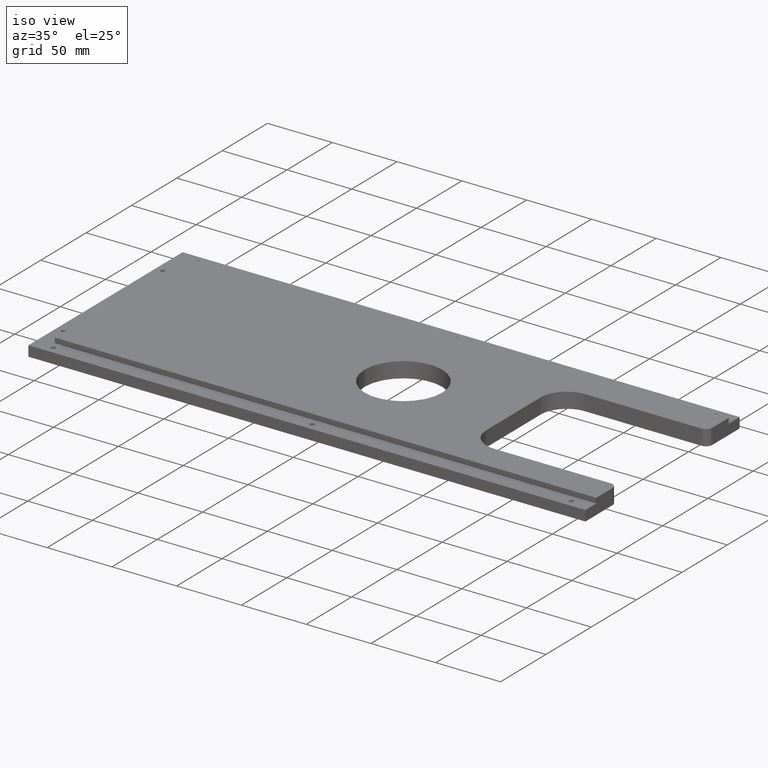
[diagram: clean part render]
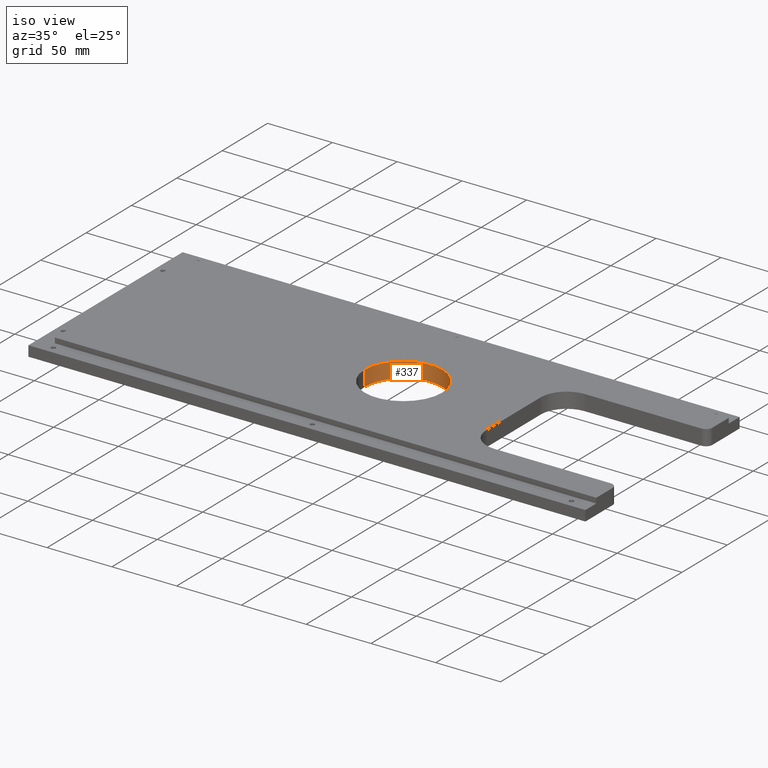
[diagram: same view with one face highlighted and labeled with its STEP entity id]
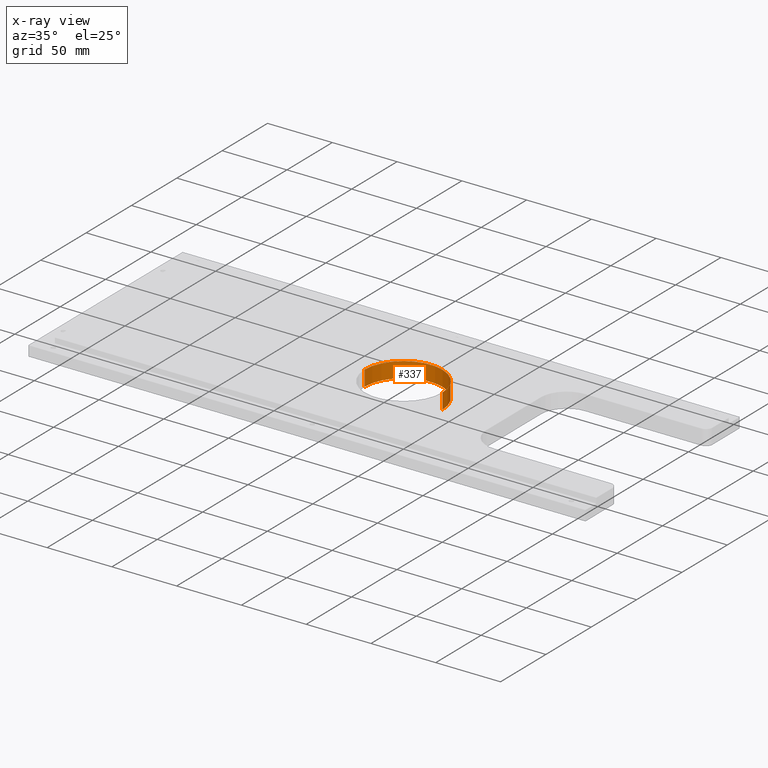
[diagram: x-ray of the same camera — body ghosted, the highlighted face saturated]
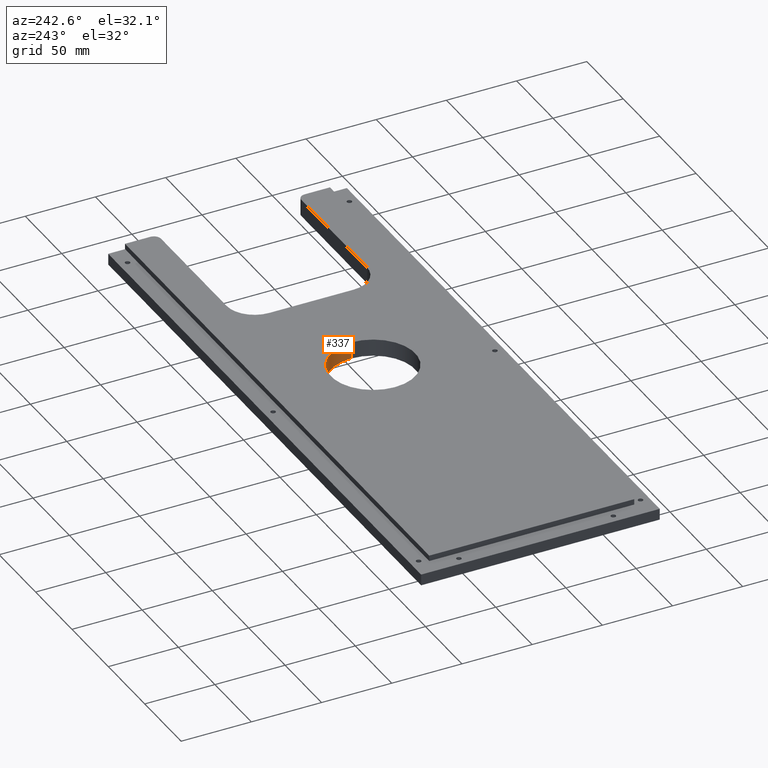
[diagram: same view with one face highlighted and labeled with its STEP entity id]
A machine part, iso view. The second image highlights one B-rep face of the part: STEP entity #337.
The next image is the same camera in x-ray: the body ghosted, the highlighted face saturated — about 0% of this face is hidden behind the body in this view.
A second angle (auxiliary view) of the same face is appended — the face is thin or edge-on in the first view.
In plain terms, the highlighted cylindrical surface (partial cylindrical patch) has radius 30 mm, axis along (-0, -0, 1).
Its self-contained STEP definition (entity closure, byte-faithful):
#10 = VECTOR ( 'NONE', #92, 1000.000000000000000 ) ;
#22 = CIRCLE ( 'NONE', #376, 30.00000000000000000 ) ;
#92 = DIRECTION ( 'NONE',  ( -0.0000000000000000000, -0.0000000000000000000, 1.000000000000000000 ) ) ;
#124 = CARTESIAN_POINT ( 'NONE',  ( 45.00000000000007100, 1.224646799147347500E-016, -6.001000000000001200 ) ) ;
#173 = CYLINDRICAL_SURFACE ( 'NONE', #1243, 30.00000000000000000 ) ;
#186 = CARTESIAN_POINT ( 'NONE',  ( -14.99999999999993100, 3.796405077356794300E-015, -6.000000000000000000 ) ) ;
#190 = EDGE_CURVE ( 'NONE', #970, #496, #197, .T. ) ;
#197 = CIRCLE ( 'NONE', #1212, 30.00000000000000000 ) ;
#213 = DIRECTION ( 'NONE',  ( 1.000000000000000000, 0.0000000000000000000, 0.0000000000000000000 ) ) ;
#238 = CARTESIAN_POINT ( 'NONE',  ( -14.99999999999993100, 3.796405077356794300E-015, -6.001000000000001200 ) ) ;
#272 = VECTOR ( 'NONE', #362, 1000.000000000000000 ) ;
#281 = VERTEX_POINT ( 'NONE', #1165 ) ;
#337 = ADVANCED_FACE ( 'NONE', ( #417 ), #173, .F. ) ;
#362 = DIRECTION ( 'NONE',  ( -0.0000000000000000000, -0.0000000000000000000, 1.000000000000000000 ) ) ;
#376 = AXIS2_PLACEMENT_3D ( 'NONE', #1210, #1141, #1139 ) ;
#408 = EDGE_LOOP ( 'NONE', ( #718, #416, #1227, #800 ) ) ;
#416 = ORIENTED_EDGE ( 'NONE', *, *, #863, .T. ) ;
#417 = FACE_OUTER_BOUND ( 'NONE', #408, .T. ) ;
#496 = VERTEX_POINT ( 'NONE', #1022 ) ;
#537 = DIRECTION ( 'NONE',  ( 0.0000000000000000000, 0.0000000000000000000, 1.000000000000000000 ) ) ;
#608 = EDGE_CURVE ( 'NONE', #623, #496, #1050, .T. ) ;
#617 = EDGE_CURVE ( 'NONE', #281, #970, #1074, .T. ) ;
#623 = VERTEX_POINT ( 'NONE', #186 ) ;
#644 = CARTESIAN_POINT ( 'NONE',  ( 15.00000000000006900, 1.224646799147347500E-016, -6.001000000000001200 ) ) ;
#718 = ORIENTED_EDGE ( 'NONE', *, *, #608, .F. ) ;
#723 = DIRECTION ( 'NONE',  ( 1.000000000000000000, 0.0000000000000000000, 0.0000000000000000000 ) ) ;
#740 = DIRECTION ( 'NONE',  ( -0.0000000000000000000, -0.0000000000000000000, 1.000000000000000000 ) ) ;
#800 = ORIENTED_EDGE ( 'NONE', *, *, #190, .T. ) ;
#863 = EDGE_CURVE ( 'NONE', #623, #281, #22, .T. ) ;
#949 = CARTESIAN_POINT ( 'NONE',  ( 45.00000000000007100, 1.224646799147347500E-016, 6.000000000000000000 ) ) ;
#970 = VERTEX_POINT ( 'NONE', #949 ) ;
#1022 = CARTESIAN_POINT ( 'NONE',  ( -14.99999999999993100, 3.796405077356794300E-015, 6.000000000000000000 ) ) ;
#1035 = CARTESIAN_POINT ( 'NONE',  ( 15.00000000000006900, 1.224646799147347500E-016, 6.000000000000000000 ) ) ;
#1050 = LINE ( 'NONE', #238, #272 ) ;
#1074 = LINE ( 'NONE', #124, #10 ) ;
#1139 = DIRECTION ( 'NONE',  ( 1.000000000000000000, 0.0000000000000000000, 0.0000000000000000000 ) ) ;
#1141 = DIRECTION ( 'NONE',  ( 0.0000000000000000000, -0.0000000000000000000, -1.000000000000000000 ) ) ;
#1165 = CARTESIAN_POINT ( 'NONE',  ( 45.00000000000007100, 1.224646799147347500E-016, -6.000000000000000000 ) ) ;
#1210 = CARTESIAN_POINT ( 'NONE',  ( 15.00000000000006900, 1.224646799147347500E-016, -6.000000000000000000 ) ) ;
#1212 = AXIS2_PLACEMENT_3D ( 'NONE', #1035, #537, #213 ) ;
#1227 = ORIENTED_EDGE ( 'NONE', *, *, #617, .T. ) ;
#1243 = AXIS2_PLACEMENT_3D ( 'NONE', #644, #740, #723 ) ;